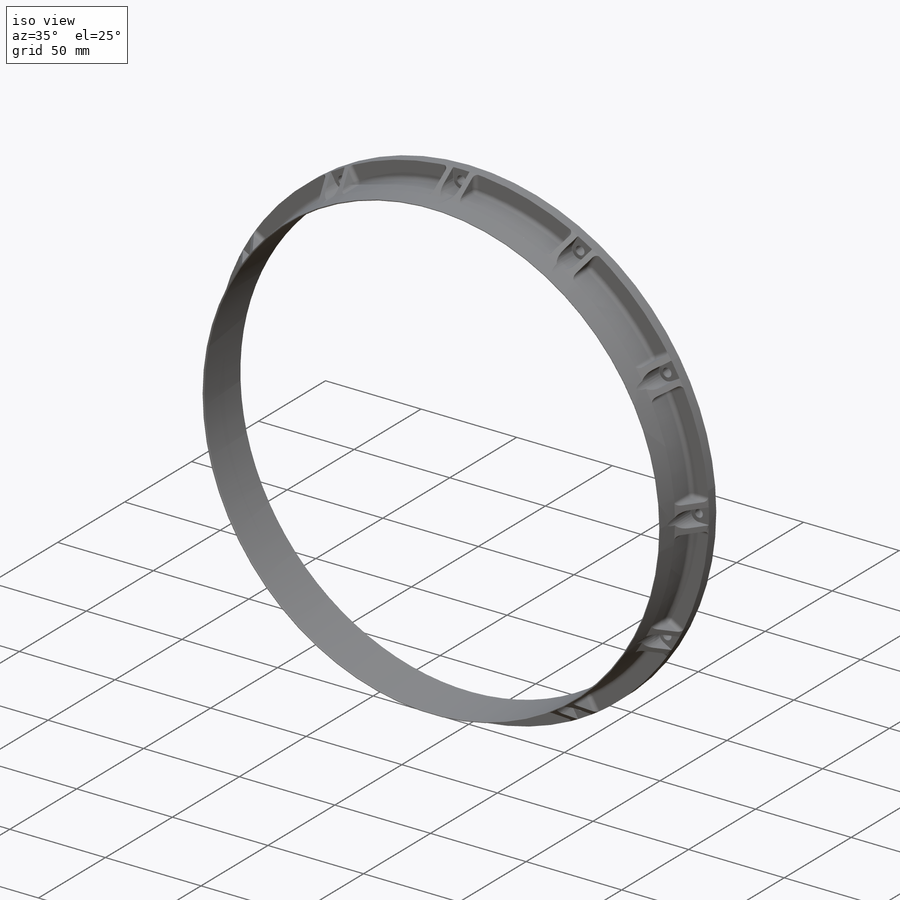
[diagram: iso view]
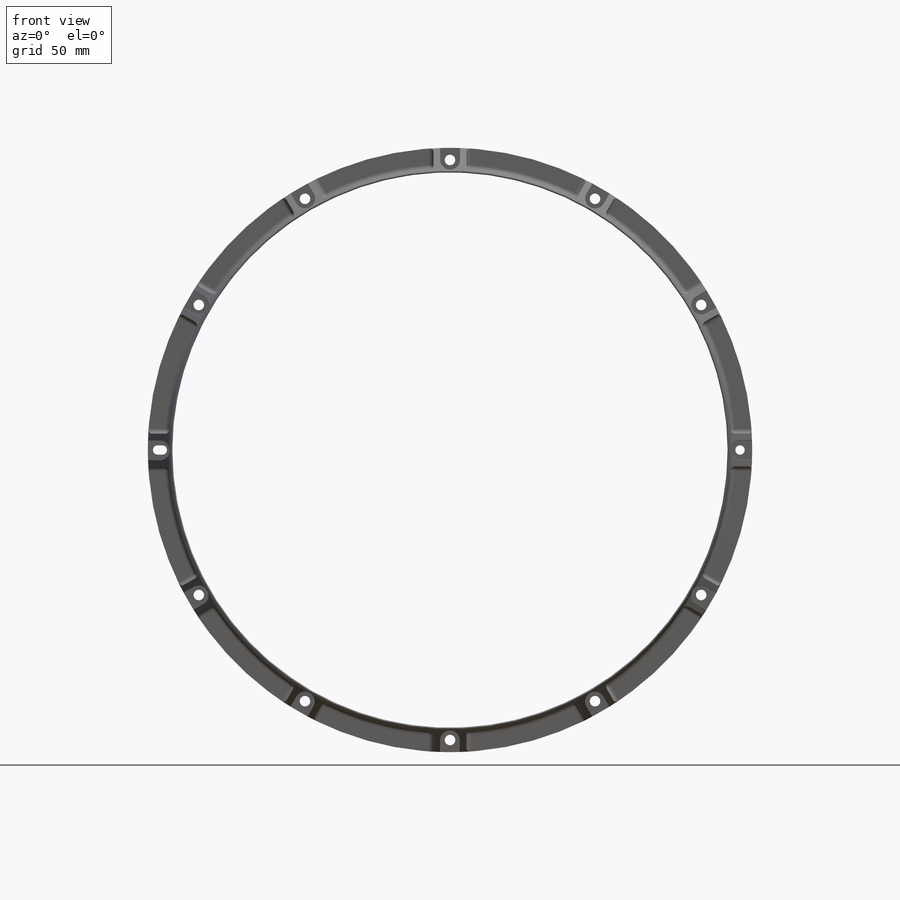
[diagram: front view]
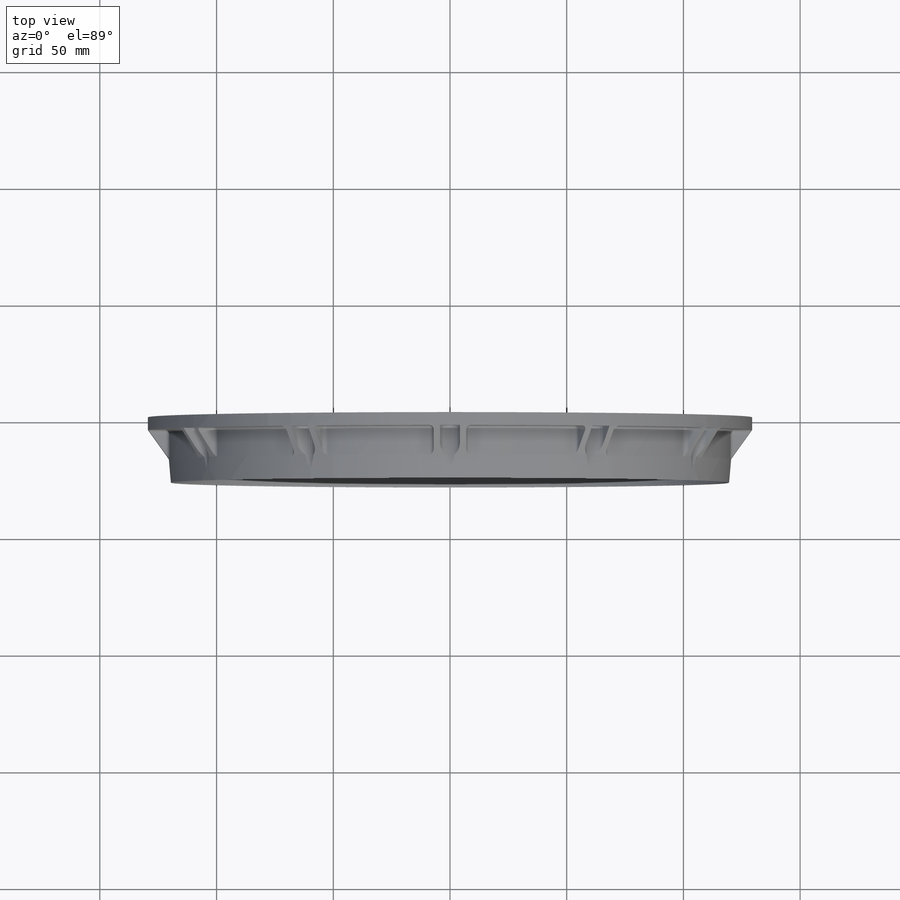
[diagram: top view]
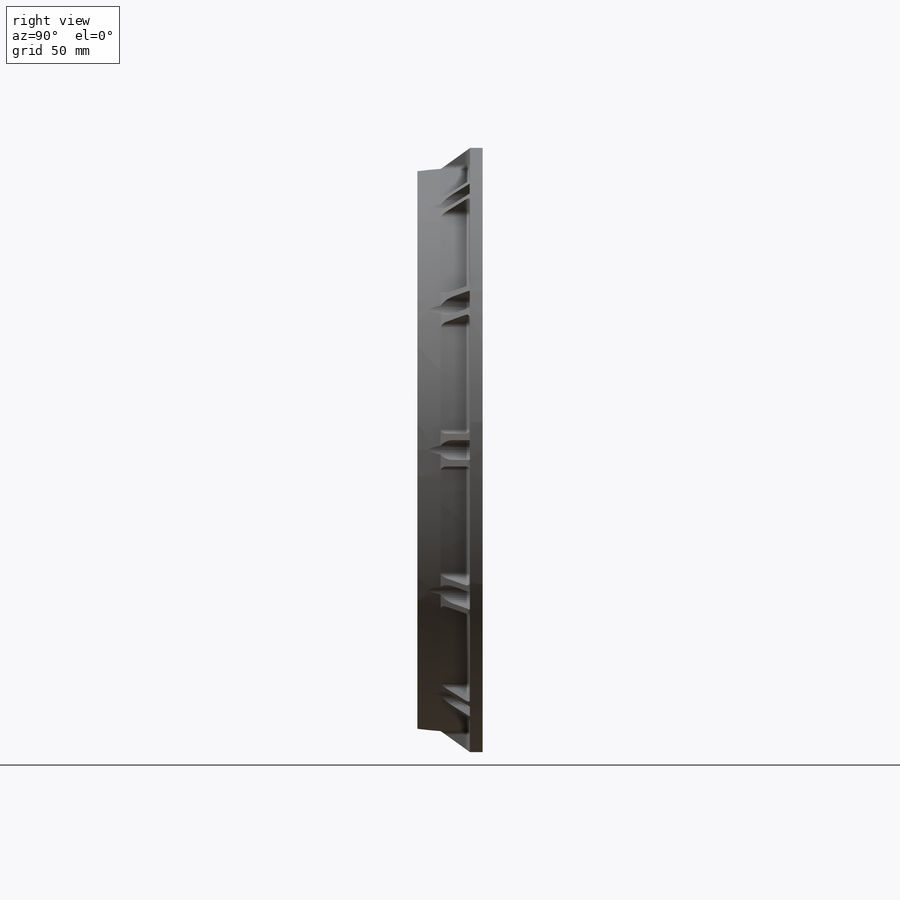
[diagram: right view]
SOLIDWORKS PART (.sldprt)
format: sldprt  version: not decoded by parser v0  size: 807,936 bytes
history: native  units: mm
features: sketch x9, pattern_circular x3, plane x2, chamfer x2, fillet x2, hole x2, cut_extrude x2, material x1, revolve x1, extrude x1, cut_revolve x1 (+11 scaffold rows collapsed)
feature tree (37):
  scaffold x11  (default folders/planes/origin — collapsed)
  material  "6061-T6 (SS)"
  sketch  "Sketch1"  dims[D1=1.0mm D2=2.0mm D3=1.5mm D4=5.5mm D5=10.5mm D6=28.0mm D7=237.9mm]
  revolve  "Revolve1"  Angle=360deg
  plane  "Plane1"
  chamfer  "Chamfer1"  Distance=10mm Angle=5deg
  chamfer  "Chamfer2"  Distance=0.3mm Angle=60deg
  plane  "Plane2"
  sketch  "Sketch6"  dims[D1=14.0mm D2=0.0mm D3=15.0deg]
  extrude  "Boss-Extrude2"  [1 undecoded]
  sketch  "Sketch7"
  cut_revolve  "Cut-Revolve1"  Angle=360deg
  fillet  "Fillet1"  Radius=2mm
  pattern_circular  "CirPattern1"  Count=12 Angle=360deg Persist_Attrib_Count_Val=1 ANS_PERSIST_KEY=0mm ANSYS_Persist_Key_Value=0mm
  hole  "Ø4.5 (4.5) Diameter Hole1"  Diameter=4.5mm Depth=28mm
  sketch  "Sketch9"  dims[D1=124.25mm]
  sketch  "Sketch8"  dims[hole-wizard template sketch: 60 standard entries collapsed; hole parameters kept: c18.Thru Hole Depth=28.0mm]
  pattern_circular  "CirPattern2"  Count=12 Angle=360deg
  hole  "Ø4.0 (4) Diameter Hole1"  Diameter=4mm Depth=28mm
  sketch  "Sketch11"
  sketch  "Sketch12"  dims[hole-wizard template sketch: 60 standard entries collapsed; hole parameters kept: c18.Thru Hole Depth=28.0mm]
  sketch  "Sketch13"  dims[D1=2.0mm]
  cut_extrude  "Cut-Extrude1"  [1 undecoded]
  sketch  "Sketch14"  dims[D1=8.5mm]
  cut_extrude  "Cut-Extrude2"  [1 undecoded]
  fillet  "Fillet2"  Radius=0.2mm
  pattern_circular  "CirPattern3"  Count=12 Angle=360deg
decode coverage: 18 of 23 modeling features carry decoded parameters
note: ~ marks probable driven/reference dimensions
note: 3 parameter values undecoded
summary: no parameter record found for 3 features
note: suppression state not decoded; provenance and decode notes live in map.json
